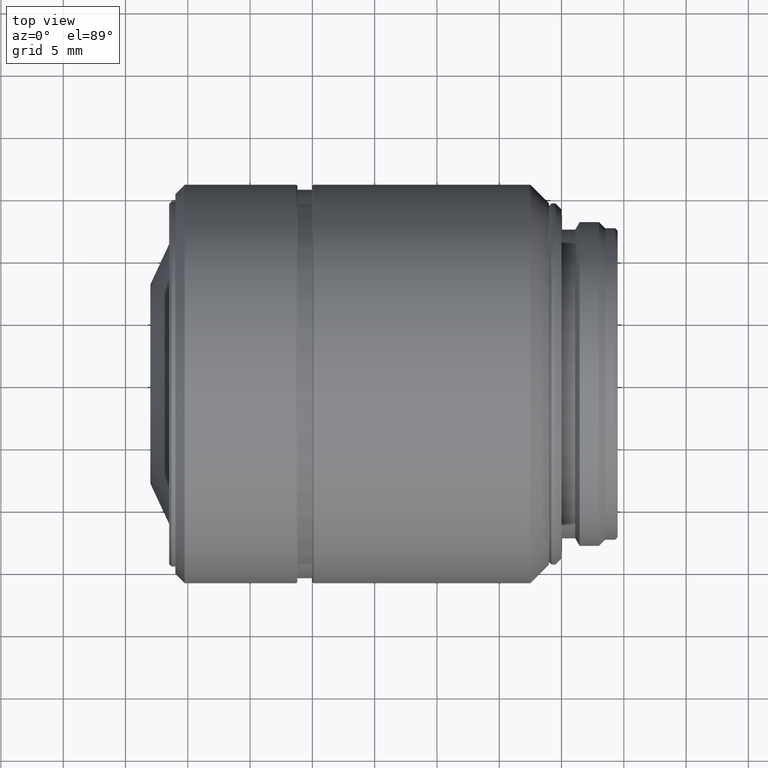
[diagram: clean part render]
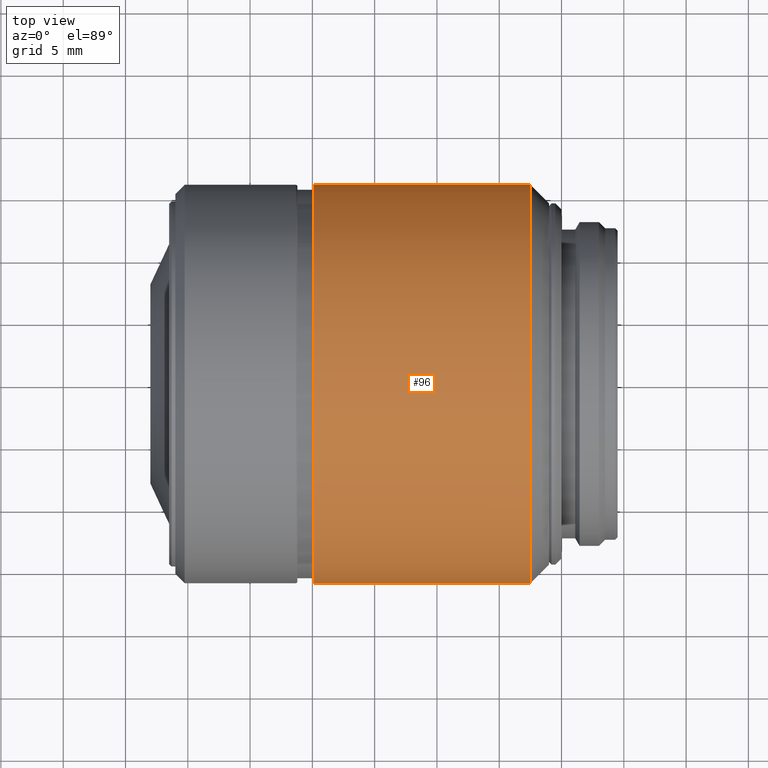
[diagram: same view with one face highlighted and labeled with its STEP entity id]
A machine part, top view. The second image highlights one B-rep face of the part: STEP entity #96.
In plain terms, the highlighted cylindrical surface (partial cylindrical patch) has radius 16 mm, axis along (-1, 0, 0).
Its self-contained STEP definition (entity closure, byte-faithful):
#2 = DIRECTION ( 'NONE',  ( 1.000000000000000000, 0.000000000000000000, 0.000000000000000000 ) ) ;
#96 = ADVANCED_FACE ( 'NONE', ( #1485 ), #1149, .T. ) ;
#97 = LINE ( 'NONE', #513, #132 ) ;
#106 = DIRECTION ( 'NONE',  ( 0.000000000000000000, 1.000000000000000000, 0.000000000000000000 ) ) ;
#132 = VECTOR ( 'NONE', #1219, 1000.000000000000000 ) ;
#237 = VERTEX_POINT ( 'NONE', #470 ) ;
#303 = CARTESIAN_POINT ( 'NONE',  ( 12.80000000000000071, 16.00000000000000000, 0.000000000000000000 ) ) ;
#310 = CARTESIAN_POINT ( 'NONE',  ( 21.50000000000000000, -16.00000000000000000, -1.959434878635769865E-15 ) ) ;
#331 = VERTEX_POINT ( 'NONE', #401 ) ;
#401 = CARTESIAN_POINT ( 'NONE',  ( 21.50000000000000000, 16.00000000000000000, 0.000000000000000000 ) ) ;
#446 = CARTESIAN_POINT ( 'NONE',  ( 12.80000000000000071, 0.000000000000000000, 0.000000000000000000 ) ) ;
#470 = CARTESIAN_POINT ( 'NONE',  ( 4.100000000000000533, 16.00000000000000000, 0.000000000000000000 ) ) ;
#512 = VERTEX_POINT ( 'NONE', #1387 ) ;
#513 = CARTESIAN_POINT ( 'NONE',  ( 12.80000000000000071, -16.00000000000000000, -1.959434878635769865E-15 ) ) ;
#529 = CIRCLE ( 'NONE', #1118, 16.00000000000000000 ) ;
#683 = ORIENTED_EDGE ( 'NONE', *, *, #1458, .F. ) ;
#761 = CARTESIAN_POINT ( 'NONE',  ( 21.50000000000000000, 0.000000000000000000, 0.000000000000000000 ) ) ;
#797 = CARTESIAN_POINT ( 'NONE',  ( 4.100000000000000533, 0.000000000000000000, 0.000000000000000000 ) ) ;
#852 = EDGE_CURVE ( 'NONE', #331, #872, #1016, .T. ) ;
#868 = DIRECTION ( 'NONE',  ( 0.000000000000000000, 1.000000000000000000, 0.000000000000000000 ) ) ;
#872 = VERTEX_POINT ( 'NONE', #310 ) ;
#883 = AXIS2_PLACEMENT_3D ( 'NONE', #446, #1155, #106 ) ;
#913 = EDGE_CURVE ( 'NONE', #331, #237, #1345, .T. ) ;
#1016 = CIRCLE ( 'NONE', #1042, 16.00000000000000000 ) ;
#1022 = EDGE_CURVE ( 'NONE', #237, #512, #529, .T. ) ;
#1025 = DIRECTION ( 'NONE',  ( 0.000000000000000000, 1.000000000000000000, 0.000000000000000000 ) ) ;
#1042 = AXIS2_PLACEMENT_3D ( 'NONE', #761, #1134, #868 ) ;
#1118 = AXIS2_PLACEMENT_3D ( 'NONE', #797, #2, #1025 ) ;
#1125 = ORIENTED_EDGE ( 'NONE', *, *, #913, .T. ) ;
#1134 = DIRECTION ( 'NONE',  ( 1.000000000000000000, 0.000000000000000000, 0.000000000000000000 ) ) ;
#1149 = CYLINDRICAL_SURFACE ( 'NONE', #883, 16.00000000000000000 ) ;
#1155 = DIRECTION ( 'NONE',  ( -1.000000000000000000, 0.000000000000000000, 0.000000000000000000 ) ) ;
#1164 = VECTOR ( 'NONE', #1215, 1000.000000000000000 ) ;
#1215 = DIRECTION ( 'NONE',  ( -1.000000000000000000, 0.000000000000000000, 0.000000000000000000 ) ) ;
#1218 = ORIENTED_EDGE ( 'NONE', *, *, #852, .F. ) ;
#1219 = DIRECTION ( 'NONE',  ( -1.000000000000000000, 0.000000000000000000, 0.000000000000000000 ) ) ;
#1309 = ORIENTED_EDGE ( 'NONE', *, *, #1022, .T. ) ;
#1345 = LINE ( 'NONE', #303, #1164 ) ;
#1387 = CARTESIAN_POINT ( 'NONE',  ( 4.100000000000000533, -16.00000000000000000, -1.959434878635769865E-15 ) ) ;
#1406 = EDGE_LOOP ( 'NONE', ( #1125, #1309, #683, #1218 ) ) ;
#1458 = EDGE_CURVE ( 'NONE', #872, #512, #97, .T. ) ;
#1485 = FACE_OUTER_BOUND ( 'NONE', #1406, .T. ) ;